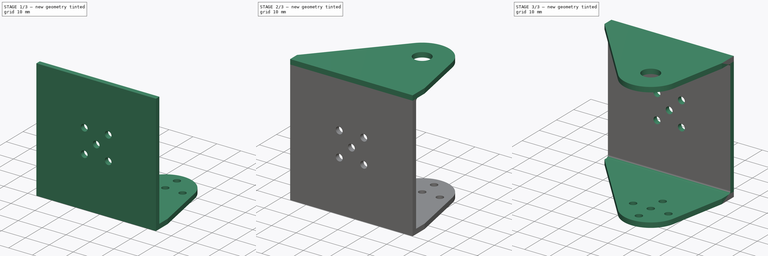
[diagram: build sequence overview — one tinted view per stage of 3, left to right]
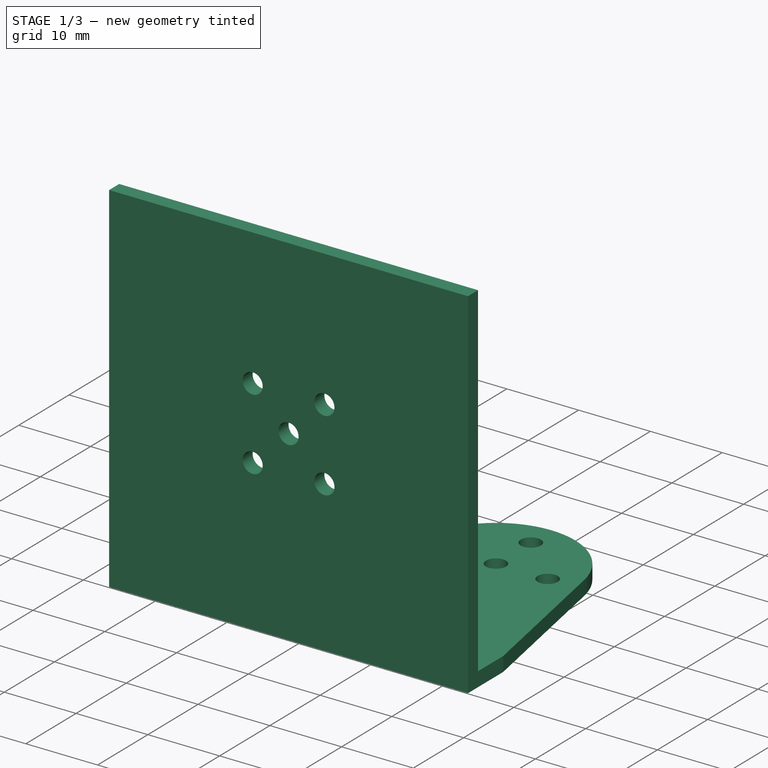
[diagram: stage 1 of 3 — iso view after this stage's code; geometry added in this stage tinted green]
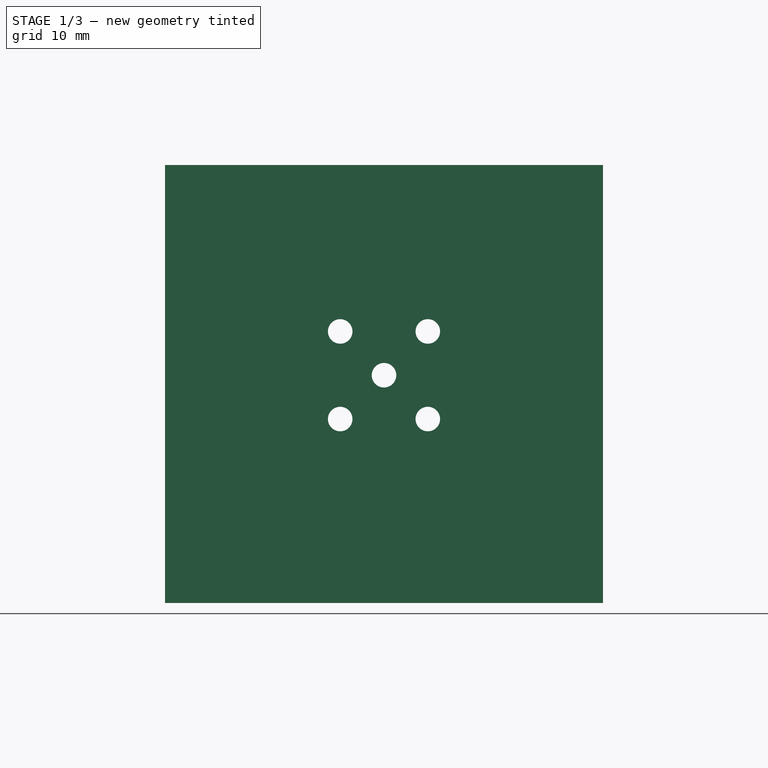
[diagram: stage 1 of 3 — front view after this stage's code; geometry added in this stage tinted green]
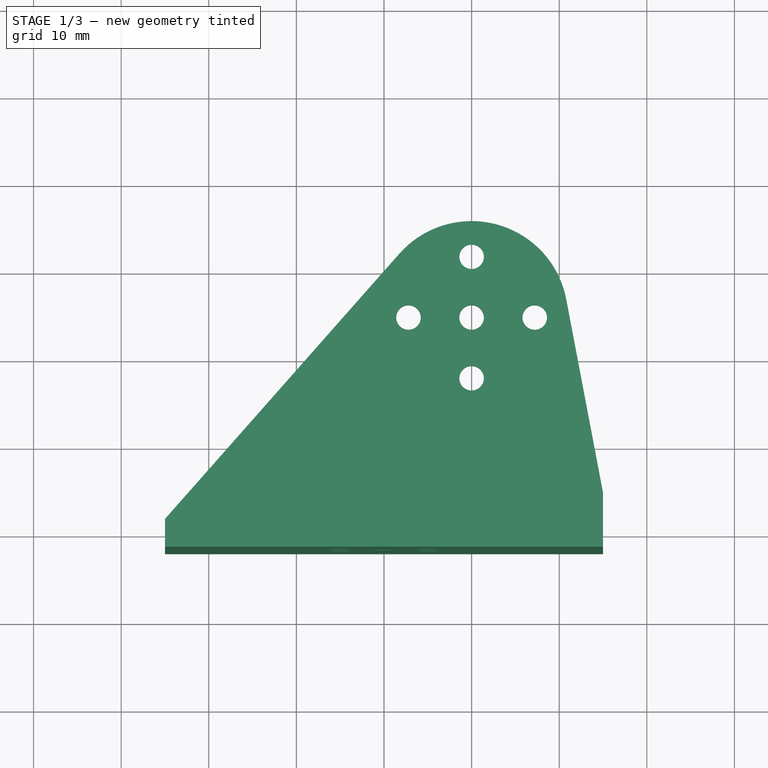
[diagram: stage 1 of 3 — top view after this stage's code; geometry added in this stage tinted green]
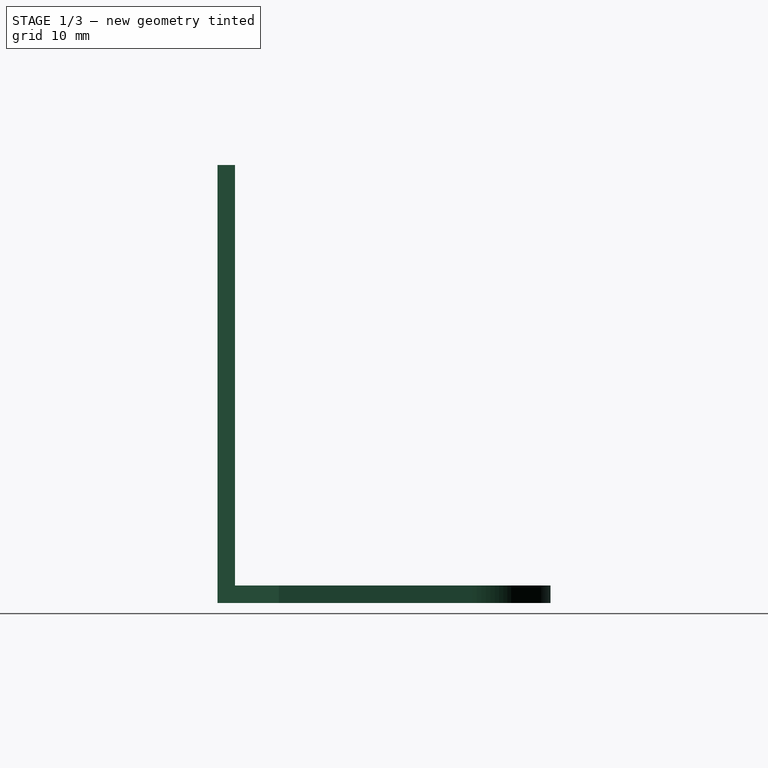
[diagram: stage 1 of 3 — right view after this stage's code; geometry added in this stage tinted green]
FCSTD DOCUMENT  (FreeCAD 0.20R29177 +426 (Git))
Label: 8L_shoulder_joint
License: All rights reserved
LicenseURL: http://en.wikipedia.org/wiki/All_rights_reserved
objects: Sketcher::SketchObject×3, PartDesign::Pad×3, PartDesign::Fillet×2, Spreadsheet::Sheet×1, PartDesign::Body×1, Part::Mirroring×1
note: 15 computed .brp shape members not serialized (recipe doc carries the construction recipe); baked Part::Feature solids carry a one-line shape summary decoded from their .brp

FEATURE [Spreadsheet::Sheet] Spreadsheet
  cells = A2=thickness; B2(thickness)=2; A4=hip_plate_width; B4(hip_plate_width)=50; C4=equal to knee_x_len; A5=hip_plate_depth; B5(hip_plate_depth)=48; C5=z; A6=screw_distance; B6(screw_distance)=7; A7=screw_center_height; B7(screw_center_height)=25; A8=screw_dia; B8(screw_dia)=2.8; A9=axis_dia; B9(axis_dia)=6; A10=axis_hole_dia; B10(axis_hole_dia)=7; A12=screw_servo_distance; B12(screw_servo_distance)=30; A13=screw_servo_height; B13(screw_servo_height)=25; A14=knee_z_len; B14(knee_z_len)=40; A15=knee_x_len; B15(knee_x_len)=50; A16=knee_y_len; B16(knee_y_len)=44; A17=knee_front_len; B17(knee_front_len)==68 - 2 * B19; A18=knee_back_len; B18(knee_back_len)=36; A19=screw_outer_radius; B19(screw_outer_radius)=3; A20=knee_front_holes_dist; B20(knee_front_holes_dist)=55; A21=knee_front_holes_y_offset; B21(knee_front_holes_y_offset)=5; A22=knee_front_back_whole_dist; B22(knee_front_back_whole_dist)=30; A23=knee_back_holes_dist; B23(knee_back_holes_dist)=25; A24=base_screw_x_offset; B24(base_screw_x_offset)=5; A25=base_screw_z_offset; B25(base_screw_z_offset)=5; A26=quad_servo_hole_dist; B26(quad_servo_hole_dist)=10
FEATURE [Sketcher::SketchObject] Sketch  label="plateSktech"
  FullyConstrained = true
  MapMode = 5
  Placement = pos=(0,0,0) rot=(1,0,0;1.5708rad)
  Support = -> [XZ_Plane]
  expr: Constraints[15] = Spreadsheet.screw_dia
  expr: Constraints[21] = Spreadsheet.quad_servo_hole_dist
  expr: Constraints[22] = Spreadsheet.quad_servo_hole_dist
  expr: Constraints[8] = Spreadsheet.hip_plate_width
  expr: Constraints[9] = Spreadsheet.hip_plate_depth
  sketch-geometry (9):
    g0: LineSegment StartX=25 StartY=24 StartZ=0 EndX=-25 EndY=24 EndZ=0
    g1: LineSegment StartX=-25 StartY=24 StartZ=0 EndX=-25 EndY=-24 EndZ=0
    g2: LineSegment StartX=-25 StartY=-24 StartZ=0 EndX=25 EndY=-24 EndZ=0
    g3: LineSegment StartX=25 StartY=-24 StartZ=0 EndX=25 EndY=24 EndZ=0
    g4: Circle CenterX=-5 CenterY=5 CenterZ=0 NormalX=0 NormalY=0 NormalZ=1 AngleXU=0 Radius=1.4
    g5: Circle CenterX=5 CenterY=5 CenterZ=0 NormalX=0 NormalY=0 NormalZ=1 AngleXU=0 Radius=1.4
    g6: Circle CenterX=-5 CenterY=-5 CenterZ=0 NormalX=0 NormalY=0 NormalZ=1 AngleXU=0 Radius=1.4
    g7: Circle CenterX=5 CenterY=-5 CenterZ=0 NormalX=0 NormalY=0 NormalZ=1 AngleXU=0 Radius=1.4
    g8: Circle CenterX=0 CenterY=-2e-16 CenterZ=0 NormalX=0 NormalY=0 NormalZ=1 AngleXU=0 Radius=1.4
  constraints (23):
    c: Coincident(g0,g1)
    c: Coincident(g1,g2)
    c: Coincident(g2,g3)
    c: Coincident(g3,g0)
    c: Horizontal(g0)
    c: Vertical(g1)
    c: Symmetric(g0,g2,g-1)
    c: Symmetric(g0,g1,g-1)
    c: DistanceX(g0,g0) = 50
    c: DistanceY(g3,g3) = 48
    c: Equal(g4,g5)
    c: Equal(g4,g7)
    c: Equal(g4,g6)
    c: Coincident(g8,g-1)
    c: Equal(g4,g8)
    c: Diameter(g4) = 2.8
    c: Vertical(g4,g6)
    c: Vertical(g5,g7)
    c: Horizontal(g5,g4)
    c: Horizontal(g6,g7)
    c: Symmetric(g4,g7,g8)
    c: DistanceX(g4,g5) = 10
    c: DistanceY(g6,g4) = 10
FEATURE [PartDesign::Pad] Pad  label="platePad"
  Direction = (0,-1,-2e-16)
  Length = 2
  Length2 = 10
  Placement = pos=(0,0,0) rot=(1,0,0;1.5708rad)
  Profile = -> Sketch
  ReferenceAxis = -> Sketch [N_Axis]
  Type = 0
  expr: Length = Spreadsheet.thickness
FEATURE [Sketcher::SketchObject] Sketch003  label="FrontSketch"
  ExternalGeometry = -> [Pad]
  FullyConstrained = true
  MapMode = 5
  Placement = pos=(3.4e-15,5.3e-15,-24) rot=(1,0,0;3.14159rad)
  Support = -> [Pad]
  expr: Constraints[11] = Spreadsheet.screw_dia
  sketch-geometry (13):
    g0: LineSegment StartX=-25 StartY=0 StartZ=0 EndX=-25 EndY=2 EndZ=0
    g1: LineSegment StartX=-25 StartY=2 StartZ=0 EndX=25 EndY=2 EndZ=0
    g2: LineSegment StartX=25 StartY=2 StartZ=0 EndX=25 EndY=0 EndZ=0
    g3: ArcOfCircle CenterX=10 CenterY=-25 CenterZ=0 NormalX=0 NormalY=0 NormalZ=1 AngleXU=0 Radius=11 StartAngle=3.86524 EndAngle=6.09528
    g4: Circle CenterX=10 CenterY=-31.9345 CenterZ=0 NormalX=0 NormalY=0 NormalZ=1 AngleXU=0 Radius=1.4
    g5: Circle CenterX=17.205 CenterY=-25 CenterZ=0 NormalX=0 NormalY=0 NormalZ=1 AngleXU=0 Radius=1.4
    g6: Circle CenterX=10 CenterY=-25 CenterZ=0 NormalX=0 NormalY=0 NormalZ=1 AngleXU=0 Radius=1.4
    g7: Circle CenterX=2.795 CenterY=-25 CenterZ=0 NormalX=0 NormalY=0 NormalZ=1 AngleXU=0 Radius=1.4
    g8: Circle CenterX=10 CenterY=-18.0655 CenterZ=0 NormalX=0 NormalY=0 NormalZ=1 AngleXU=0 Radius=1.4
    g9: LineSegment StartX=25 StartY=0 StartZ=0 EndX=25 EndY=-5 EndZ=0
    g10: LineSegment StartX=25 StartY=-5 StartZ=0 EndX=20.8064 EndY=-27.0548 EndZ=0
    g11: LineSegment StartX=-25 StartY=-2 StartZ=0 EndX=1.75665 EndY=-32.2834 EndZ=0
    g12: LineSegment StartX=-25 StartY=0 StartZ=0 EndX=-25 EndY=-2 EndZ=0
  constraints (32):
    c: Coincident(g1,g0)
    c: Coincident(g2,g1)
    c: Horizontal(g5,g7)
    c: Symmetric(g7,g5,g6)
    c: Symmetric(g4,g8,g6)
    c: Distance(g5,g8) = 10
    c: Distance(g5,g4) = 10
    c: Equal(g4,g6)
    c: Equal(g4,g7)
    c: Equal(g4,g8)
    c: Equal(g4,g5)
    c: Diameter(g4) = 2.8
    c: Radius(g3) = 11
    c: DistanceX(g7,g5) = 14.41
    c: Coincident(g3,g4)
    c: Coincident(g3,g6)
    c: Coincident(g-3,g1)
    c: Coincident(g0,g-4)
    c: Coincident(g2,g-6)
    c: Coincident(g9,g2)
    c: Coincident(g10,g9)
    c: Tangent(g10,g3) = 1.5708
    c: Vertical(g9)
    c: DistanceY(g9,g9) = 5
    c: DistanceY(g3,g2) = 25
    c: DistanceX(g3,g2) = 15
    c: Tangent(g11,g3) = -1.5708
    c: Coincident(g12,g0)
    c: Coincident(g12,g11)
    c: Coincident(g-5,g0)
    c: Vertical(g12)
    c: DistanceY(g12,g12) = 2
FEATURE [Sketcher::SketchObject] Sketch004  label="BackSketch"
  ExternalGeometry = -> [Pad]
  FullyConstrained = true
  MapMode = 5
  Placement = pos=(0,-5.3e-15,24) rot=(0,0,1;3.14159rad)
  Support = -> [Pad]
  expr: Constraints[9] = Spreadsheet.axis_hole_dia
  sketch-geometry (9):
    g0: LineSegment StartX=-25 StartY=2 StartZ=0 EndX=25 EndY=2 EndZ=0
    g1: LineSegment StartX=25 StartY=2 StartZ=0 EndX=25 EndY=0 EndZ=0
    g2: LineSegment StartX=-25 StartY=0 StartZ=0 EndX=-25 EndY=2 EndZ=0
    g3: LineSegment StartX=-25 StartY=-5 StartZ=0 EndX=-20.8064 EndY=-27.0548 EndZ=0
    g4: LineSegment StartX=25 StartY=-2 StartZ=0 EndX=-1.75665 EndY=-32.2834 EndZ=0
    g5: Circle CenterX=-10 CenterY=-25 CenterZ=0 NormalX=0 NormalY=0 NormalZ=1 AngleXU=0 Radius=3.5
    g6: ArcOfCircle CenterX=-10 CenterY=-25 CenterZ=0 NormalX=0 NormalY=0 NormalZ=1 AngleXU=0 Radius=11 StartAngle=3.3295 EndAngle=5.55954
    g7: LineSegment StartX=-25 StartY=0 StartZ=0 EndX=-25 EndY=-5 EndZ=0
    g8: LineSegment StartX=25 StartY=0 StartZ=0 EndX=25 EndY=-2 EndZ=0
  constraints (21):
    c: Coincident(g0,g1)
    c: Coincident(g2,g0)
    c: Coincident(g0,g-4)
    c: Coincident(g6,g5)
    c: DistanceX(g2,g5) = 15
    c: DistanceY(g5,g2) = 25
    c: Radius(g6) = 11
    c: Tangent(g6,g4) = 1.5708
    c: Tangent(g6,g3) = -1.5708
    c: Diameter(g5) = 7
    c: Coincident(g2,g-4)
    c: Coincident(g7,g2)
    c: Coincident(g7,g3)
    c: Vertical(g7)
    c: DistanceY(g7,g7) = 5
    c: Coincident(g8,g1)
    c: Coincident(g8,g4)
    c: Vertical(g8)
    c: Coincident(g-5,g0)
    c: DistanceY(g8,g8) = 2
    c: Coincident(g1,g-6)
FEATURE [PartDesign::Pad] Pad001  label="FrontPad"
  BaseFeature = -> Pad
  Direction = (1e-16,2e-16,-1)
  Length = 2
  Length2 = 10
  Placement = pos=(0,0,0) rot=(1,0,0;1.5708rad)
  Profile = -> Sketch003
  ReferenceAxis = -> Sketch003 [N_Axis]
  Type = 0
  expr: Length = Spreadsheet.thickness
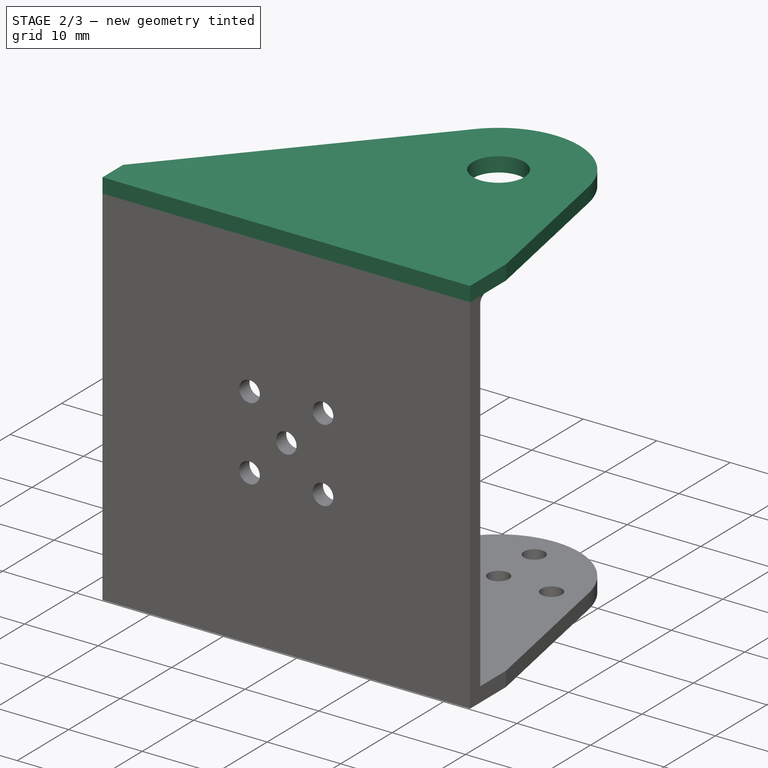
[diagram: stage 2 of 3 — iso view after this stage's code; geometry added in this stage tinted green]
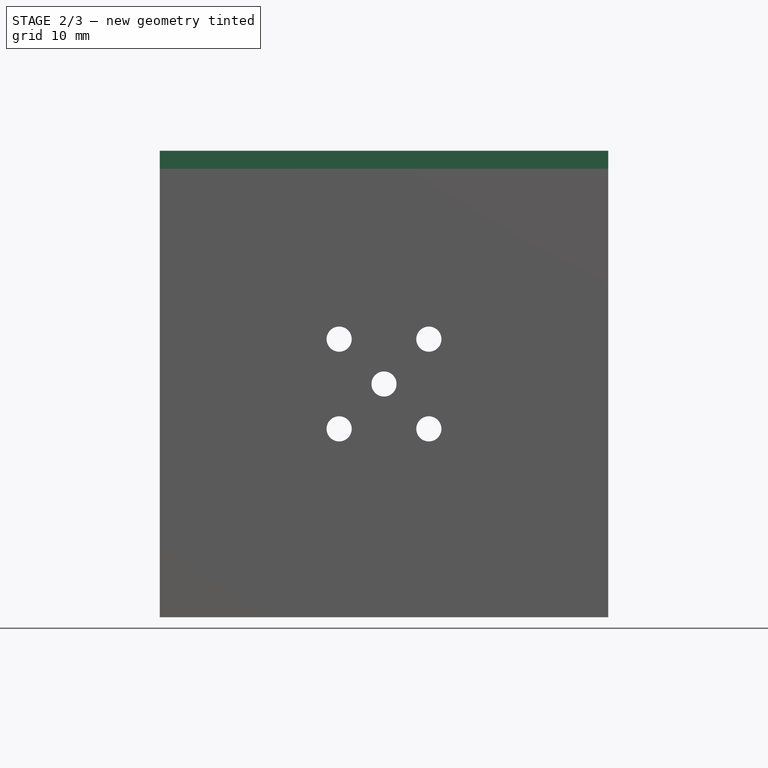
[diagram: stage 2 of 3 — front view after this stage's code; geometry added in this stage tinted green]
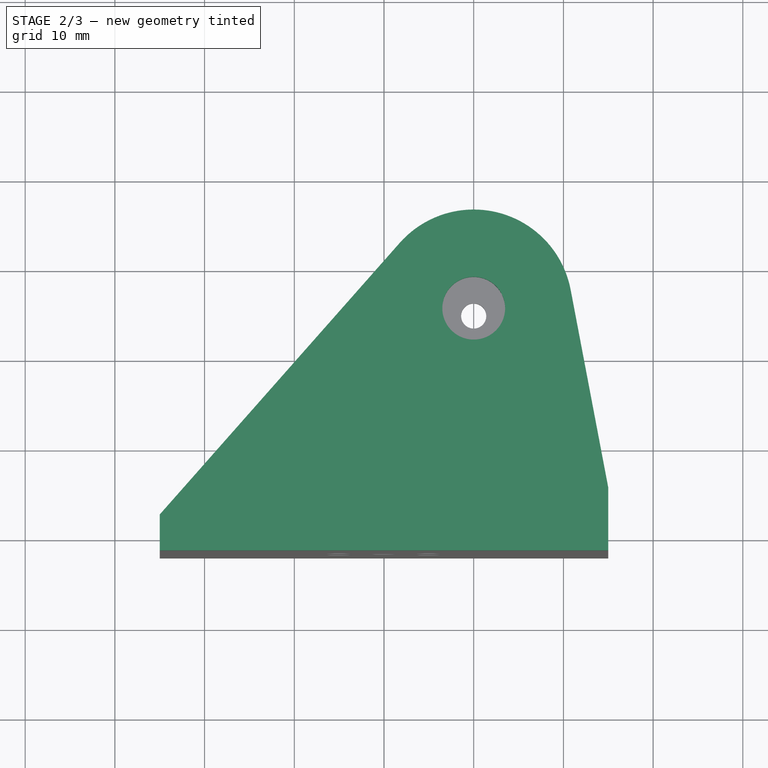
[diagram: stage 2 of 3 — top view after this stage's code; geometry added in this stage tinted green]
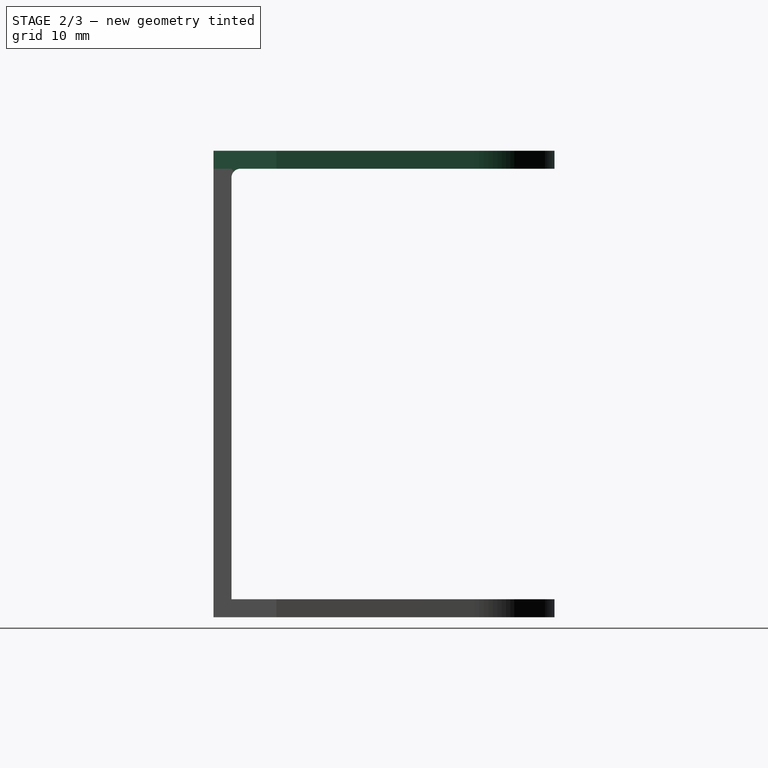
[diagram: stage 2 of 3 — right view after this stage's code; geometry added in this stage tinted green]
FEATURE [PartDesign::Pad] Pad002  label="BackPad"
  BaseFeature = -> Pad001
  Direction = (0,-2e-16,1)
  Length = 2
  Length2 = 10
  Placement = pos=(0,0,0) rot=(1,0,0;1.5708rad)
  Profile = -> Sketch004
  ReferenceAxis = -> Sketch004 [N_Axis]
  Type = 0
  expr: Length = Spreadsheet.thickness
FEATURE [PartDesign::Fillet] Fillet
  Base = -> Pad002 [Edge11]
  BaseFeature = -> Pad002
  Placement = pos=(0,0,0) rot=(1,0,0;1.5708rad)
  Radius = 1
  SupportTransform = false
  UseAllEdges = false
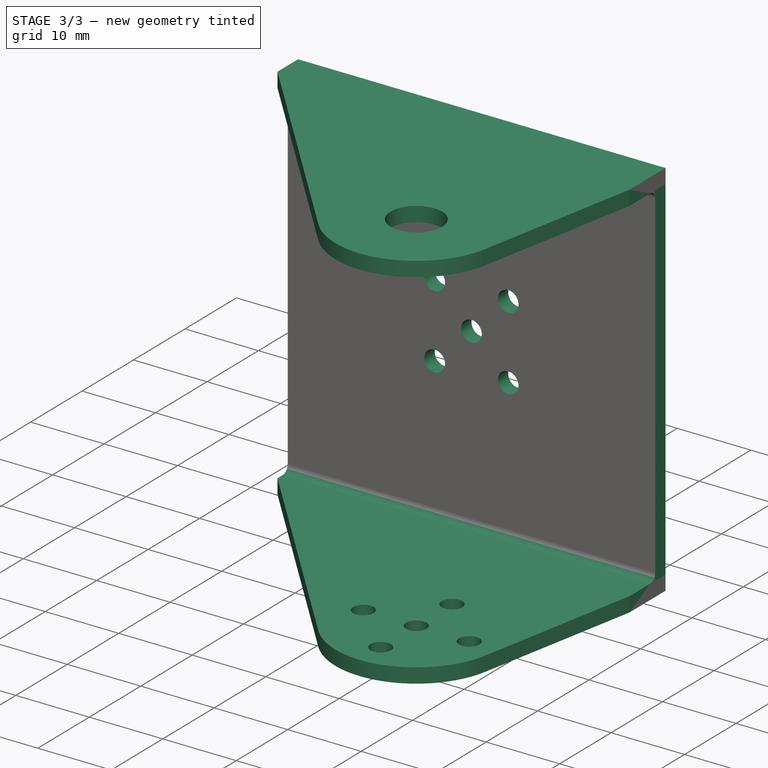
[diagram: stage 3 of 3 — iso view after this stage's code; geometry added in this stage tinted green]
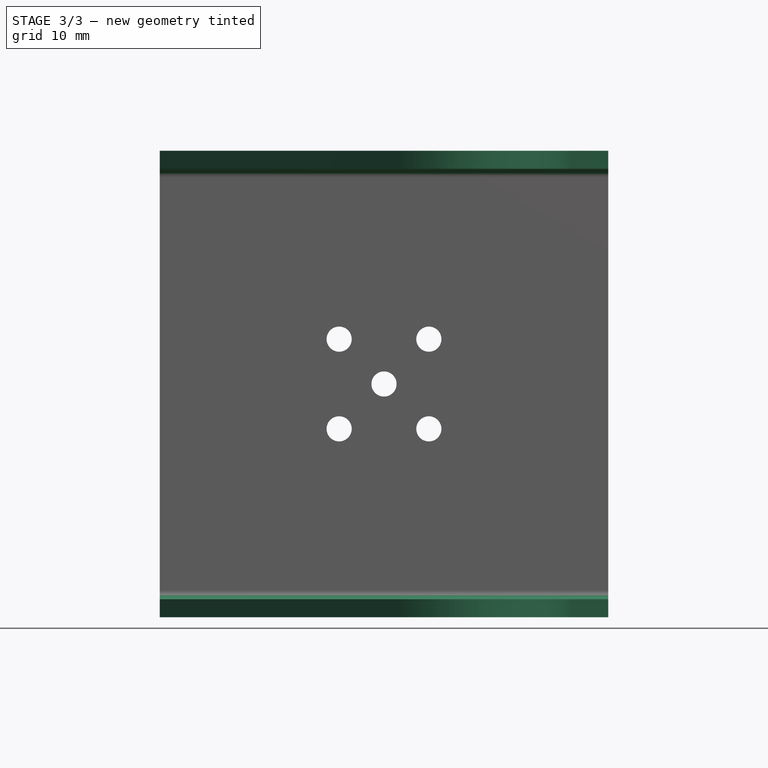
[diagram: stage 3 of 3 — front view after this stage's code; geometry added in this stage tinted green]
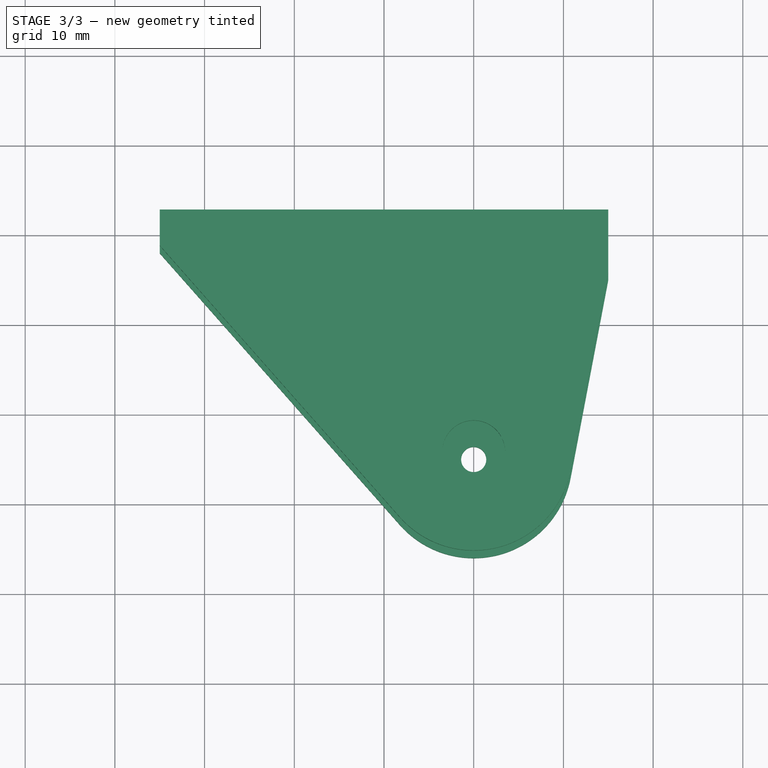
[diagram: stage 3 of 3 — top view after this stage's code; geometry added in this stage tinted green]
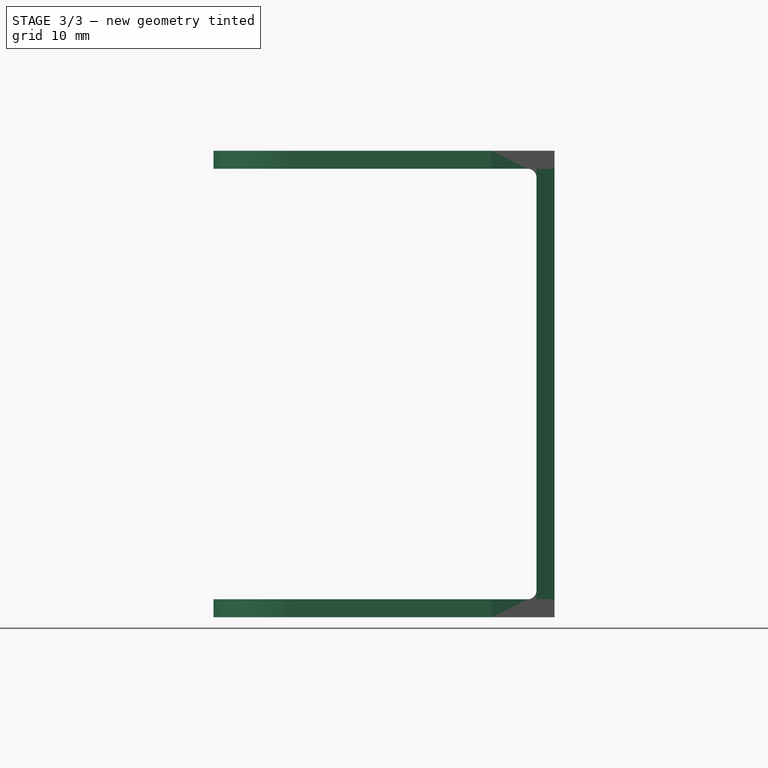
[diagram: stage 3 of 3 — right view after this stage's code; geometry added in this stage tinted green]
FEATURE [PartDesign::Fillet] Fillet001
  Base = -> Fillet [Edge8]
  BaseFeature = -> Fillet
  Placement = pos=(0,0,0) rot=(1,0,0;1.5708rad)
  Radius = 1
  SupportTransform = false
  UseAllEdges = false
FEATURE [PartDesign::Body] Body
  Group = -> [Sketch,Sketch003,Sketch004,Pad,Pad001,Pad002,Fillet,Fillet001]
  Origin = -> Origin
  Tip = -> Fillet001
FEATURE [Part::Mirroring] Part__Mirroring  label="Body (Mirror #1)"
  Base = (0,0,0)
  Normal = (0,1,0)
  Source = -> Body
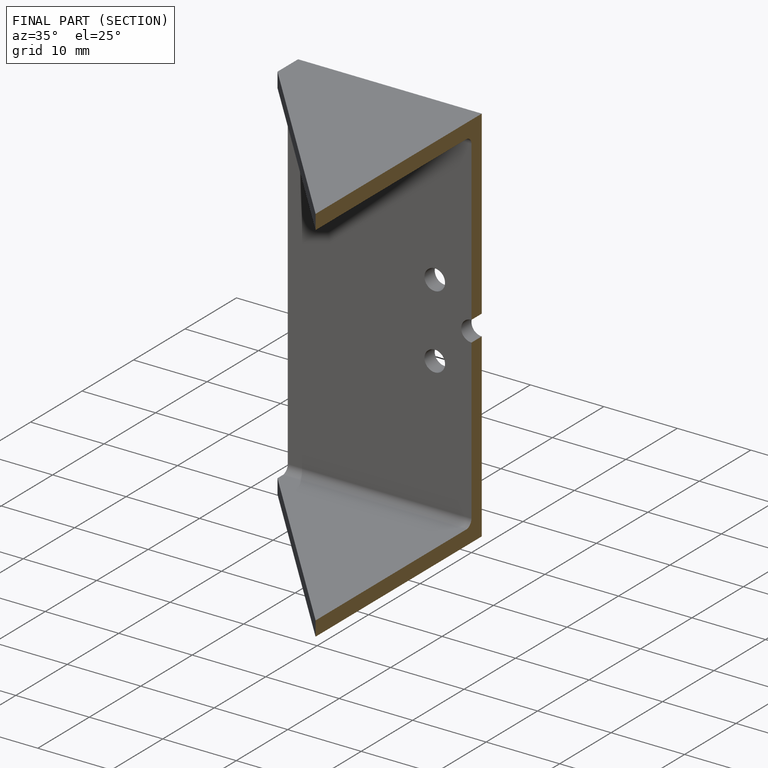
[diagram: finished part — half-section view (interior)]
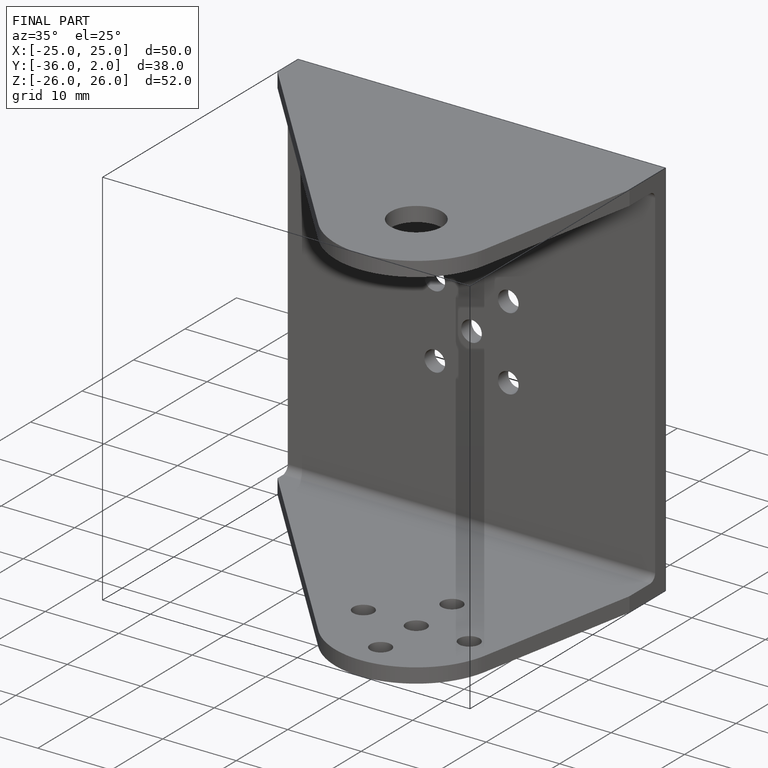
[diagram: finished part — iso view with bounding-box wireframe]
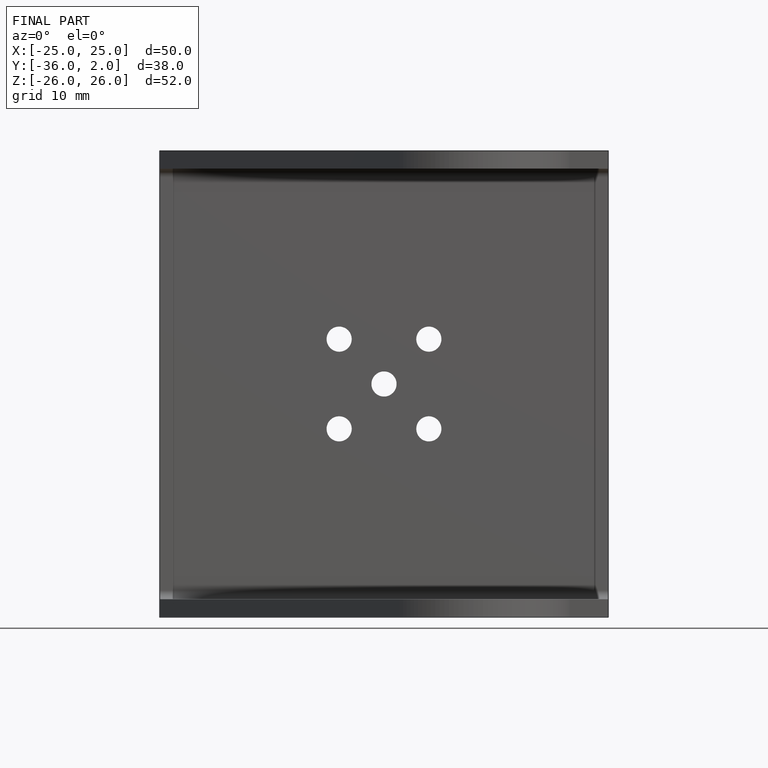
[diagram: finished part — front view with bounding-box wireframe]
